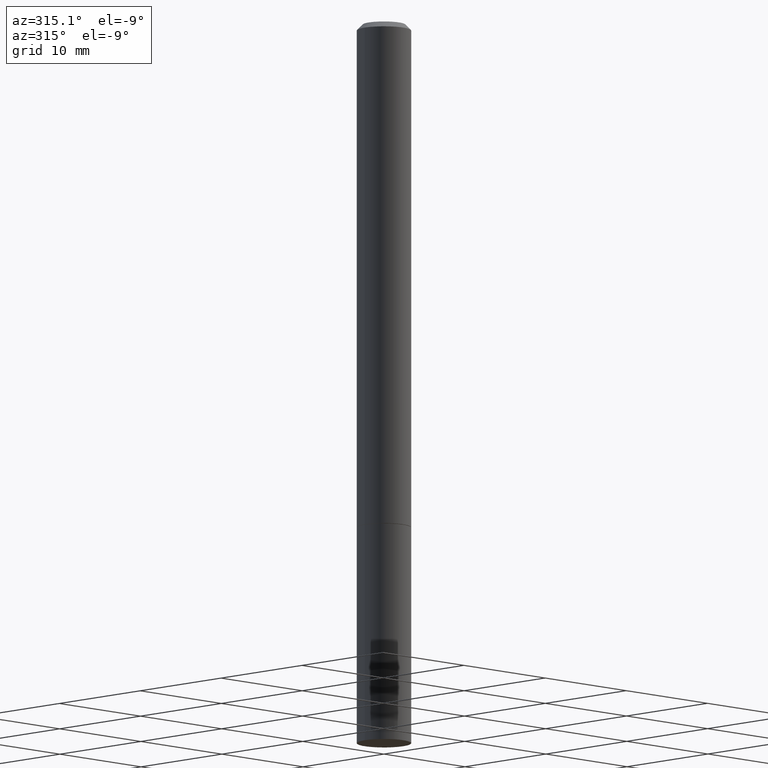
[diagram: clean part render]
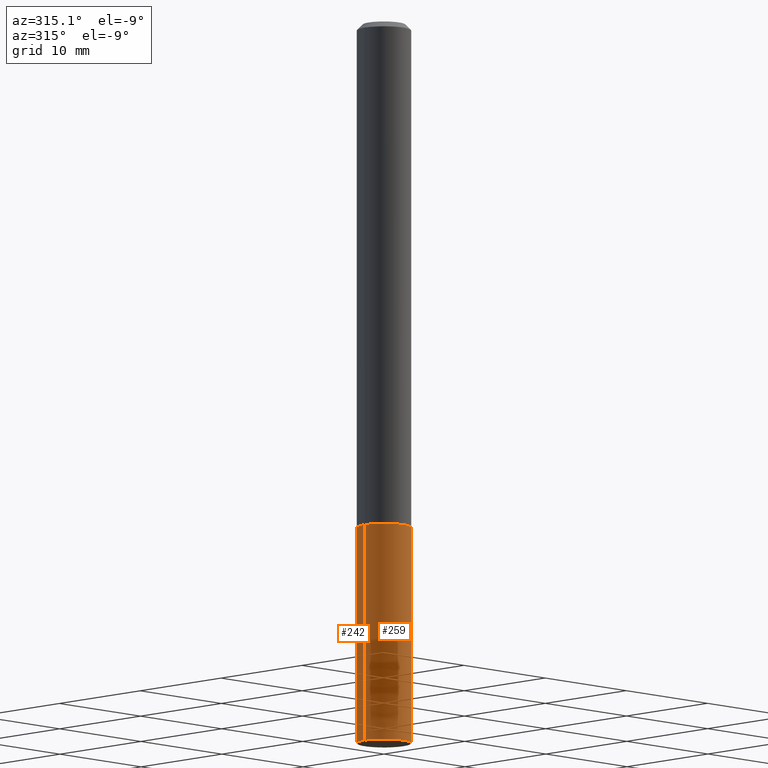
[diagram: same view with one multi-face feature highlighted, each face labeled with its STEP entity id]
A machine part, auxiliary view. The highlighted faces form ONE feature: a constant-radius fillet chain: 2 tangent blend faces with common blend radius 2.3813 mm. The faces share edges in the B-rep.
Their STEP definitions:
[1] entity #259 (Cylinder):
#1 = CARTESIAN_POINT ( 'NONE',  ( 0.09375000000000001388, -6.764745094008592175E-15, -1.750000000000000222 ) ) ;
#12 = EDGE_CURVE ( 'NONE', #248, #281, #296, .T. ) ;
#28 = CARTESIAN_POINT ( 'NONE',  ( -0.09375000000000001388, -6.753264030266591277E-15, -1.750000000000000222 ) ) ;
#40 = DIRECTION ( 'NONE',  ( -2.445468806185136877E-29, 3.491481338843145188E-15, 1.000000000000000000 ) ) ;
#57 = DIRECTION ( 'NONE',  ( -2.445468806185136597E-29, 3.491481338843145583E-15, 1.000000000000000000 ) ) ;
#65 = CIRCLE ( 'NONE', #318, 0.09375000000000001388 ) ;
#84 = EDGE_CURVE ( 'NONE', #204, #252, #221, .T. ) ;
#88 = CARTESIAN_POINT ( 'NONE',  ( 4.279570410823989044E-29, -6.110092342975505460E-15, -1.750000000000000222 ) ) ;
#113 = ORIENTED_EDGE ( 'NONE', *, *, #12, .T. ) ;
#115 = CARTESIAN_POINT ( 'NONE',  ( -0.09375000000000001388, -6.753264030266591277E-15, -2.500000000000000000 ) ) ;
#116 = ORIENTED_EDGE ( 'NONE', *, *, #167, .T. ) ;
#127 = CIRCLE ( 'NONE', #338, 0.09375000000000001388 ) ;
#145 = VECTOR ( 'NONE', #40, 39.37007874015748143 ) ;
#155 = EDGE_CURVE ( 'NONE', #252, #281, #65, .T. ) ;
#160 = CARTESIAN_POINT ( 'NONE',  ( 6.113672015462842613E-29, -8.728703347107864943E-15, -2.500000000000000000 ) ) ;
#165 = CARTESIAN_POINT ( 'NONE',  ( 0.000000000000000000, 0.000000000000000000, 0.000000000000000000 ) ) ;
#167 = EDGE_CURVE ( 'NONE', #204, #248, #127, .T. ) ;
#172 = ORIENTED_EDGE ( 'NONE', *, *, #155, .F. ) ;
#184 = ORIENTED_EDGE ( 'NONE', *, *, #84, .F. ) ;
#190 = CYLINDRICAL_SURFACE ( 'NONE', #213, 0.09375000000000001388 ) ;
#194 = FACE_OUTER_BOUND ( 'NONE', #235, .T. ) ;
#204 = VERTEX_POINT ( 'NONE', #115 ) ;
#213 = AXIS2_PLACEMENT_3D ( 'NONE', #165, #279, #255 ) ;
#216 = DIRECTION ( 'NONE',  ( 1.000000000000000000, -6.982962677686272233E-15, 0.000000000000000000 ) ) ;
#221 = LINE ( 'NONE', #329, #145 ) ;
#235 = EDGE_LOOP ( 'NONE', ( #184, #116, #113, #172 ) ) ;
#248 = VERTEX_POINT ( 'NONE', #335 ) ;
#252 = VERTEX_POINT ( 'NONE', #28 ) ;
#255 = DIRECTION ( 'NONE',  ( 1.000000000000000000, -6.982962677686265922E-15, 4.876176775795935793E-29 ) ) ;
#259 = ADVANCED_FACE ( 'NONE', ( #194 ), #190, .T. ) ;
#272 = DIRECTION ( 'NONE',  ( -2.445468806185136877E-29, 3.491481338843145188E-15, 1.000000000000000000 ) ) ;
#279 = DIRECTION ( 'NONE',  ( -2.445468806185136597E-29, 3.491481338843145583E-15, 1.000000000000000000 ) ) ;
#281 = VERTEX_POINT ( 'NONE', #1 ) ;
#283 = DIRECTION ( 'NONE',  ( 1.000000000000000000, -6.982962677686261189E-15, 0.000000000000000000 ) ) ;
#296 = LINE ( 'NONE', #334, #311 ) ;
#311 = VECTOR ( 'NONE', #272, 39.37007874015748143 ) ;
#314 = DIRECTION ( 'NONE',  ( -2.445468806185136597E-29, 3.491481338843145583E-15, 1.000000000000000000 ) ) ;
#318 = AXIS2_PLACEMENT_3D ( 'NONE', #88, #57, #283 ) ;
#329 = CARTESIAN_POINT ( 'NONE',  ( -0.09375000000000001388, 6.661338147750940229E-16, -4.611501647113973995E-30 ) ) ;
#334 = CARTESIAN_POINT ( 'NONE',  ( 0.09375000000000001388, -6.546527510330875041E-16, 4.571415727308690506E-30 ) ) ;
#335 = CARTESIAN_POINT ( 'NONE',  ( 0.09375000000000001388, -9.383356098140953236E-15, -2.500000000000000000 ) ) ;
#338 = AXIS2_PLACEMENT_3D ( 'NONE', #160, #314, #216 ) ;
[2] entity #242 (Cylinder):
#1 = CARTESIAN_POINT ( 'NONE',  ( 0.09375000000000001388, -6.764745094008592175E-15, -1.750000000000000222 ) ) ;
#5 = AXIS2_PLACEMENT_3D ( 'NONE', #363, #89, #87 ) ;
#12 = EDGE_CURVE ( 'NONE', #248, #281, #296, .T. ) ;
#20 = AXIS2_PLACEMENT_3D ( 'NONE', #77, #276, #109 ) ;
#28 = CARTESIAN_POINT ( 'NONE',  ( -0.09375000000000001388, -6.753264030266591277E-15, -1.750000000000000222 ) ) ;
#31 = FACE_OUTER_BOUND ( 'NONE', #358, .T. ) ;
#40 = DIRECTION ( 'NONE',  ( -2.445468806185136877E-29, 3.491481338843145188E-15, 1.000000000000000000 ) ) ;
#49 = AXIS2_PLACEMENT_3D ( 'NONE', #106, #301, #212 ) ;
#52 = CYLINDRICAL_SURFACE ( 'NONE', #5, 0.09375000000000001388 ) ;
#56 = EDGE_CURVE ( 'NONE', #248, #204, #90, .T. ) ;
#75 = EDGE_CURVE ( 'NONE', #281, #252, #322, .T. ) ;
#77 = CARTESIAN_POINT ( 'NONE',  ( 6.113672015462842613E-29, -8.728703347107864943E-15, -2.500000000000000000 ) ) ;
#84 = EDGE_CURVE ( 'NONE', #204, #252, #221, .T. ) ;
#87 = DIRECTION ( 'NONE',  ( 1.000000000000000000, -6.982962677686265922E-15, 4.876176775795935793E-29 ) ) ;
#89 = DIRECTION ( 'NONE',  ( -2.445468806185136597E-29, 3.491481338843145583E-15, 1.000000000000000000 ) ) ;
#90 = CIRCLE ( 'NONE', #20, 0.09375000000000001388 ) ;
#106 = CARTESIAN_POINT ( 'NONE',  ( 4.279570410823989044E-29, -6.110092342975505460E-15, -1.750000000000000222 ) ) ;
#109 = DIRECTION ( 'NONE',  ( 1.000000000000000000, -6.982962677686272233E-15, 0.000000000000000000 ) ) ;
#115 = CARTESIAN_POINT ( 'NONE',  ( -0.09375000000000001388, -6.753264030266591277E-15, -2.500000000000000000 ) ) ;
#145 = VECTOR ( 'NONE', #40, 39.37007874015748143 ) ;
#195 = ORIENTED_EDGE ( 'NONE', *, *, #75, .F. ) ;
#204 = VERTEX_POINT ( 'NONE', #115 ) ;
#212 = DIRECTION ( 'NONE',  ( 1.000000000000000000, -6.982962677686261189E-15, 0.000000000000000000 ) ) ;
#221 = LINE ( 'NONE', #329, #145 ) ;
#225 = ORIENTED_EDGE ( 'NONE', *, *, #12, .F. ) ;
#242 = ADVANCED_FACE ( 'NONE', ( #31 ), #52, .T. ) ;
#248 = VERTEX_POINT ( 'NONE', #335 ) ;
#252 = VERTEX_POINT ( 'NONE', #28 ) ;
#272 = DIRECTION ( 'NONE',  ( -2.445468806185136877E-29, 3.491481338843145188E-15, 1.000000000000000000 ) ) ;
#276 = DIRECTION ( 'NONE',  ( -2.445468806185136597E-29, 3.491481338843145583E-15, 1.000000000000000000 ) ) ;
#281 = VERTEX_POINT ( 'NONE', #1 ) ;
#296 = LINE ( 'NONE', #334, #311 ) ;
#301 = DIRECTION ( 'NONE',  ( -2.445468806185136597E-29, 3.491481338843145583E-15, 1.000000000000000000 ) ) ;
#309 = ORIENTED_EDGE ( 'NONE', *, *, #56, .T. ) ;
#311 = VECTOR ( 'NONE', #272, 39.37007874015748143 ) ;
#322 = CIRCLE ( 'NONE', #49, 0.09375000000000001388 ) ;
#329 = CARTESIAN_POINT ( 'NONE',  ( -0.09375000000000001388, 6.661338147750940229E-16, -4.611501647113973995E-30 ) ) ;
#334 = CARTESIAN_POINT ( 'NONE',  ( 0.09375000000000001388, -6.546527510330875041E-16, 4.571415727308690506E-30 ) ) ;
#335 = CARTESIAN_POINT ( 'NONE',  ( 0.09375000000000001388, -9.383356098140953236E-15, -2.500000000000000000 ) ) ;
#336 = ORIENTED_EDGE ( 'NONE', *, *, #84, .T. ) ;
#358 = EDGE_LOOP ( 'NONE', ( #309, #336, #195, #225 ) ) ;
#363 = CARTESIAN_POINT ( 'NONE',  ( 0.000000000000000000, 0.000000000000000000, 0.000000000000000000 ) ) ;